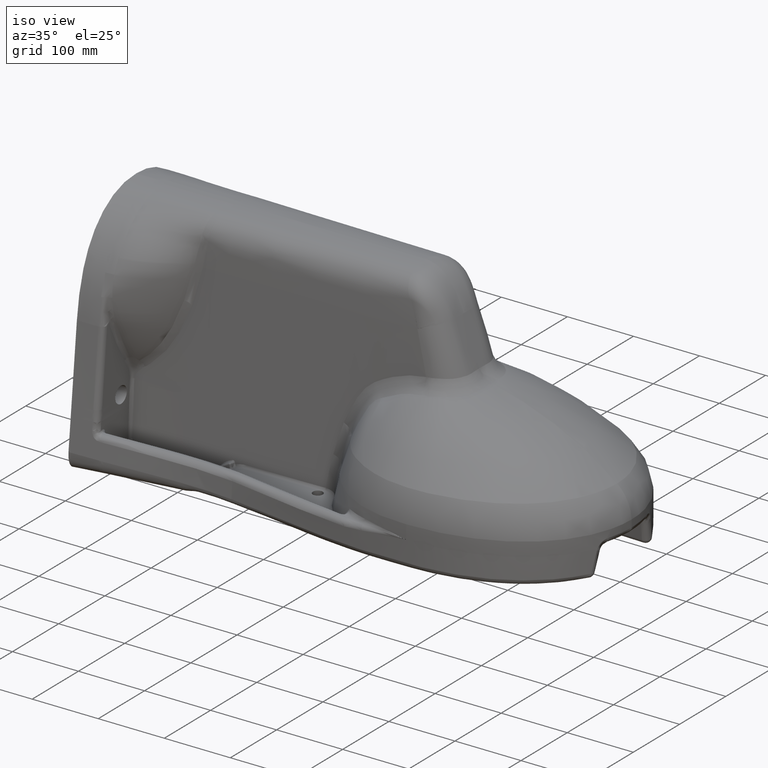
[diagram: clean part render]
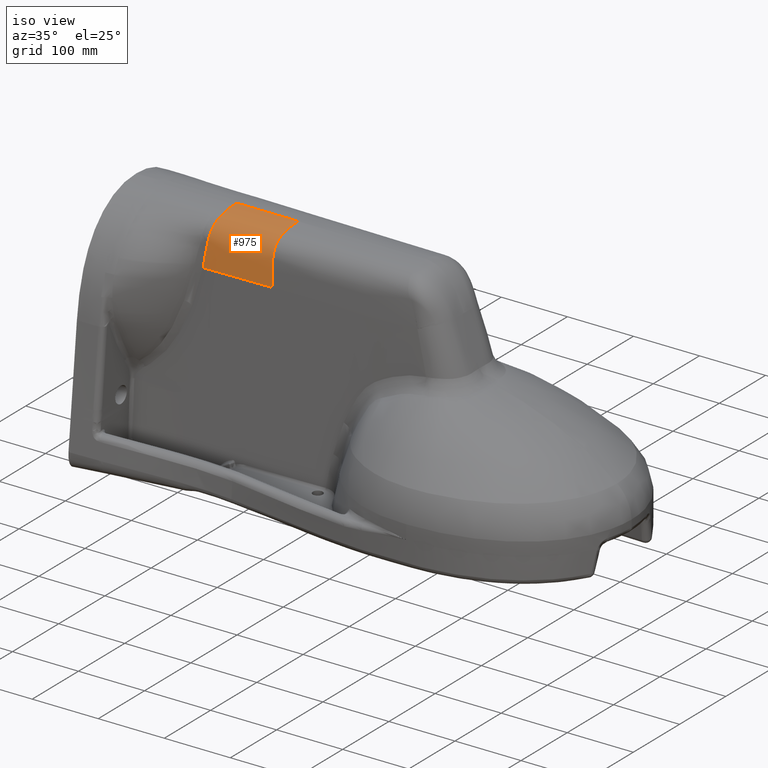
[diagram: same view with one face highlighted and labeled with its STEP entity id]
A machine part, iso view. The second image highlights one B-rep face of the part: STEP entity #975.
In plain terms, the highlighted face is a freeform B-spline surface patch.
Its self-contained STEP definition (entity closure, byte-faithful):
#975=ADVANCED_FACE('',(#1557),#1172,.F.);
#1172=B_SPLINE_SURFACE_WITH_KNOTS('',3,3,((#55493,#55494,#55495,#55496,
#55497,#55498,#55499,#55500,#55501,#55502,#55503,#55504,#55505,#55506,#55507,
#55508,#55509,#55510,#55511),(#55512,#55513,#55514,#55515,#55516,#55517,
#55518,#55519,#55520,#55521,#55522,#55523,#55524,#55525,#55526,#55527,#55528,
#55529,#55530),(#55531,#55532,#55533,#55534,#55535,#55536,#55537,#55538,
#55539,#55540,#55541,#55542,#55543,#55544,#55545,#55546,#55547,#55548,#55549),
(#55550,#55551,#55552,#55553,#55554,#55555,#55556,#55557,#55558,#55559,
#55560,#55561,#55562,#55563,#55564,#55565,#55566,#55567,#55568)),
 .UNSPECIFIED.,.F.,.F.,.F.,(4,4),(4,1,1,1,1,1,1,1,1,1,1,1,1,1,1,1,4),(0.,
1.),(0.,0.03125,0.0625,0.125,0.1875,0.25,0.28125,0.3125,0.34375,0.375,0.5,
0.625,0.65625,0.6875,0.75,0.875,1.),.UNSPECIFIED.);
#1557=FACE_OUTER_BOUND('',#1982,.T.);
#1982=EDGE_LOOP('',(#3766,#3767,#3768,#3769,#3770,#3771,#3772,#3773));
#3766=ORIENTED_EDGE('',*,*,#5533,.F.);
#3767=ORIENTED_EDGE('',*,*,#5330,.F.);
#3768=ORIENTED_EDGE('',*,*,#5637,.F.);
#3769=ORIENTED_EDGE('',*,*,#5638,.T.);
#3770=ORIENTED_EDGE('',*,*,#5639,.T.);
#3771=ORIENTED_EDGE('',*,*,#5640,.T.);
#3772=ORIENTED_EDGE('',*,*,#5632,.F.);
#3773=ORIENTED_EDGE('',*,*,#5636,.F.);
#4444=VERTEX_POINT('',#32484);
#4511=VERTEX_POINT('',#33856);
#4602=VERTEX_POINT('',#45791);
#4665=VERTEX_POINT('',#55287);
#4666=VERTEX_POINT('',#55292);
#4669=VERTEX_POINT('',#55464);
#4670=VERTEX_POINT('',#55475);
#4671=VERTEX_POINT('',#55485);
#5330=EDGE_CURVE('',#4511,#4444,#6187,.T.);
#5533=EDGE_CURVE('',#4444,#4602,#6343,.T.);
#5632=EDGE_CURVE('',#4665,#4666,#6417,.T.);
#5636=EDGE_CURVE('',#4602,#4665,#6421,.T.);
#5637=EDGE_CURVE('',#4669,#4511,#6422,.T.);
#5638=EDGE_CURVE('',#4669,#4670,#6423,.T.);
#5639=EDGE_CURVE('',#4670,#4671,#6424,.T.);
#5640=EDGE_CURVE('',#4671,#4666,#6425,.T.);
#6187=B_SPLINE_CURVE_WITH_KNOTS('',3,(#33857,#33858,#33859,#33860),
 .UNSPECIFIED.,.F.,.F.,(4,4),(0.,1.),.UNSPECIFIED.);
#6343=B_SPLINE_CURVE_WITH_KNOTS('',3,(#53964,#53965,#53966,#53967,#53968,
#53969,#53970,#53971,#53972,#53973,#53974,#53975,#53976,#53977,#53978,#53979,
#53980,#53981,#53982,#53983,#53984,#53985,#53986,#53987,#53988,#53989,#53990,
#53991,#53992,#53993,#53994,#53995,#53996,#53997,#53998,#53999,#54000,#54001,
#54002,#54003,#54004,#54005,#54006),.UNSPECIFIED.,.F.,.F.,(4,2,2,2,2,1,
2,2,2,2,2,1,1,1,2,2,2,2,2,2,1,2,2,4),(0.,0.124999999999967,0.187499999999951,
0.218749999999943,0.234374999999939,0.242187499999937,0.246093749999936,
0.249999999999935,0.312499999999923,0.37499999999991,0.437499999999897,
0.468749999999891,0.484374999999887,0.492187499999886,0.496093749999886,
0.499999999999885,0.624999999999905,0.687499999999915,0.718749999999921,
0.734374999999924,0.742187499999926,0.746093749999927,0.749999999999928,
1.),.UNSPECIFIED.);
#6417=B_SPLINE_CURVE_WITH_KNOTS('',3,(#55288,#55289,#55290,#55291),
 .UNSPECIFIED.,.F.,.F.,(4,4),(0.,1.),.UNSPECIFIED.);
#6421=B_SPLINE_CURVE_WITH_KNOTS('',3,(#55455,#55456,#55457,#55458),
 .UNSPECIFIED.,.F.,.F.,(4,4),(0.,1.),.UNSPECIFIED.);
#6422=B_SPLINE_CURVE_WITH_KNOTS('',3,(#55460,#55461,#55462,#55463),
 .UNSPECIFIED.,.F.,.F.,(4,4),(0.,1.),.UNSPECIFIED.);
#6423=B_SPLINE_CURVE_WITH_KNOTS('',3,(#55465,#55466,#55467,#55468,#55469,
#55470,#55471,#55472,#55473,#55474),.UNSPECIFIED.,.F.,.F.,(4,1,1,1,1,1,
1,4),(0.,0.0596270820719349,0.27725869333143,0.494890304590926,0.712521915850421,
0.821337721480169,0.930153527109917,1.),.UNSPECIFIED.);
#6424=B_SPLINE_CURVE_WITH_KNOTS('',3,(#55476,#55477,#55478,#55479,#55480,
#55481,#55482,#55483,#55484),.UNSPECIFIED.,.F.,.F.,(4,1,1,1,1,1,4),(0.,
0.0340644823233682,0.129184255405961,0.509663347736333,0.890142440066705,
0.985262213149298,1.),.UNSPECIFIED.);
#6425=B_SPLINE_CURVE_WITH_KNOTS('',3,(#55486,#55487,#55488,#55489,#55490,
#55491,#55492),.UNSPECIFIED.,.F.,.F.,(4,1,1,1,4),(0.,0.0779214710555977,
0.262337731278038,0.631170251722918,1.),.UNSPECIFIED.);
#32484=CARTESIAN_POINT('',(244.999999953417,153.525,338.620183975041));
#33856=CARTESIAN_POINT('',(152.339890200768,153.525,338.620174489876));
#33857=CARTESIAN_POINT('',(152.339890200768,153.525,338.620174489876));
#33858=CARTESIAN_POINT('',(183.226593451651,153.524999720602,338.620177651598));
#33859=CARTESIAN_POINT('',(214.113296702534,153.524999441204,338.620180813319));
#33860=CARTESIAN_POINT('',(244.999999953417,153.524999161806,338.620183975041));
#45791=CARTESIAN_POINT('',(244.999999920859,96.7338828946421,269.81781102533));
#53964=CARTESIAN_POINT('',(244.999999953417,153.525000838194,338.620183975041));
#53965=CARTESIAN_POINT('',(244.999999953417,150.555066539239,338.620183994532));
#53966=CARTESIAN_POINT('',(245.005072822118,146.81198865172,338.642402271709));
#53967=CARTESIAN_POINT('',(245.004097562759,140.078231982451,338.098260892646));
#53968=CARTESIAN_POINT('',(245.002912856426,137.648400339442,337.823490512872));
#53969=CARTESIAN_POINT('',(245.001393100726,133.744243926827,337.21170141794));
#53970=CARTESIAN_POINT('',(245.000915830665,132.399715963146,336.97432709536));
#53971=CARTESIAN_POINT('',(245.000392661867,130.32170181257,336.559771985978));
#53972=CARTESIAN_POINT('',(245.000250410165,129.618837868328,336.411834933469));
#53973=CARTESIAN_POINT('',(245.000102919884,128.549785052328,336.174227103319));
#53974=CARTESIAN_POINT('',(245.000045630921,128.011570406828,336.051497252472));
#53975=CARTESIAN_POINT('',(245.000016189485,127.467932368493,335.92267378638));
#53976=CARTESIAN_POINT('',(245.000003090335,127.104314580035,335.835414371854));
#53977=CARTESIAN_POINT('',(244.999999842397,126.87625719479,335.779865278674));
#53978=CARTESIAN_POINT('',(245.000001729738,124.541432355581,335.205478363818));
#53979=CARTESIAN_POINT('',(244.990421895962,122.357748194748,334.601235455895));
#53980=CARTESIAN_POINT('',(244.995745349144,118.066502123841,333.190771775564));
#53981=CARTESIAN_POINT('',(245.019129570328,115.967387991868,332.354481249152));
#53982=CARTESIAN_POINT('',(245.045185568255,112.034894231645,330.187880798629));
#53983=CARTESIAN_POINT('',(245.04987155833,110.200045049043,328.880411382755));
#53984=CARTESIAN_POINT('',(245.042403314943,107.700670124205,326.645354720348));
#53985=CARTESIAN_POINT('',(245.035067958606,106.51415885281,325.45943053944));
#53986=CARTESIAN_POINT('',(245.019831977022,105.252534663014,323.969984115888));
#53987=CARTESIAN_POINT('',(245.01049722041,104.653892913185,323.200521303954));
#53988=CARTESIAN_POINT('',(245.006123670114,104.404387678382,322.865635255411));
#53989=CARTESIAN_POINT('',(245.003124531399,104.239636734635,322.641261502203));
#53990=CARTESIAN_POINT('',(245.001140820233,104.135481474979,322.496858686316));
#53991=CARTESIAN_POINT('',(244.9634922153,102.214621731045,319.802895835011));
#53992=CARTESIAN_POINT('',(244.962495387161,100.363692689835,316.332541307325));
#53993=CARTESIAN_POINT('',(244.97711735905,98.8150541809607,309.78314342424));
#53994=CARTESIAN_POINT('',(244.983750446308,98.5785147834789,307.381377175214));
#53995=CARTESIAN_POINT('',(244.992267696212,98.3845375868186,303.537074847509));
#53996=CARTESIAN_POINT('',(244.994891880346,98.3294975354139,302.214820052784));
#53997=CARTESIAN_POINT('',(244.997795636977,98.2300949126414,300.172002154443));
#53998=CARTESIAN_POINT('',(244.998589071794,98.1956725449304,299.48107693063));
#53999=CARTESIAN_POINT('',(244.999416620773,98.1427371966754,298.429696851299));
#54000=CARTESIAN_POINT('',(244.999739664655,98.1159459705531,297.900258669985));
#54001=CARTESIAN_POINT('',(244.999906963971,98.0888053586301,297.365195014735));
#54002=CARTESIAN_POINT('',(244.99998165198,98.0706503538138,297.007235389011));
#54003=CARTESIAN_POINT('',(245.000000452441,98.059731938711,296.7918974659));
#54004=CARTESIAN_POINT('',(244.999968015875,97.5839158930749,287.399547190164));
#54005=CARTESIAN_POINT('',(244.999999953417,97.1560189002258,278.453184993812));
#54006=CARTESIAN_POINT('',(244.999999953417,96.7338830255792,269.817811018929));
#55287=CARTESIAN_POINT('',(155.000000008796,95.3330495003624,269.817681650746));
#55288=CARTESIAN_POINT('',(154.999999942523,95.3330537452772,269.817775251965));
#55289=CARTESIAN_POINT('',(150.593185874458,95.2645255433232,269.817768991901));
#55290=CARTESIAN_POINT('',(146.186371806394,95.1959973413694,269.817762731838));
#55291=CARTESIAN_POINT('',(141.77955773833,95.1274691394154,269.817756471775));
#55292=CARTESIAN_POINT('',(141.779538446476,95.1273699208943,269.817659525516));
#55455=CARTESIAN_POINT('',(244.999999939309,96.7338816288474,269.817785831296));
#55456=CARTESIAN_POINT('',(214.999999983516,96.2669362382011,269.817720945441));
#55457=CARTESIAN_POINT('',(185.000000027722,95.7999908475548,269.817656059585));
#55458=CARTESIAN_POINT('',(155.000000071928,95.3330454569084,269.81759117373));
#55460=CARTESIAN_POINT('',(152.339890200769,148.524998895113,338.620214317763));
#55461=CARTESIAN_POINT('',(152.339890200768,150.191665929864,338.620187765839));
#55462=CARTESIAN_POINT('',(152.339890200768,151.858332964932,338.620174489876));
#55463=CARTESIAN_POINT('',(152.339890200768,153.525,338.620174489876));
#55464=CARTESIAN_POINT('',(152.339804268697,148.525000870644,338.619500961423));
#55465=CARTESIAN_POINT('',(152.339718336636,148.525002846179,338.618787605083));
#55466=CARTESIAN_POINT('',(152.339508710981,147.896046771092,338.617071060103));
#55467=CARTESIAN_POINT('',(152.33697495084,144.971661121127,338.596306082881));
#55468=CARTESIAN_POINT('',(152.301470041961,139.756077002531,338.305257719151));
#55469=CARTESIAN_POINT('',(152.19552175135,132.920473186636,337.439709138216));
#55470=CARTESIAN_POINT('',(152.058356151956,127.289089169967,336.322613535601));
#55471=CARTESIAN_POINT('',(151.919629642561,122.840659278917,335.195647687655));
#55472=CARTESIAN_POINT('',(151.816152967355,119.928011791632,334.356108669045));
#55473=CARTESIAN_POINT('',(151.746263771834,118.131046166193,333.789604081921));
#55474=CARTESIAN_POINT('',(151.71678050678,117.434777798165,333.550852911803));
#55475=CARTESIAN_POINT('',(151.71667452005,117.435059080985,333.550045696931));
#55476=CARTESIAN_POINT('',(151.716780506774,117.434777798165,333.550852911804));
#55477=CARTESIAN_POINT('',(151.700330955085,117.046309882935,333.417646847055));
#55478=CARTESIAN_POINT('',(151.635397901158,115.580471753369,332.892083265738));
#55479=CARTESIAN_POINT('',(151.328170994896,109.949215156213,330.410482931006));
#55480=CARTESIAN_POINT('',(150.472042928337,101.931577551015,323.52697537183));
#55481=CARTESIAN_POINT('',(149.196556953806,97.7292949115974,313.875383101923));
#55482=CARTESIAN_POINT('',(148.36524919234,97.0450944756398,308.048350620046));
#55483=CARTESIAN_POINT('',(148.175108047079,96.951522436665,306.739746438227));
#55484=CARTESIAN_POINT('',(148.149531459972,96.9398569647218,306.564148272694));
#55485=CARTESIAN_POINT('',(148.149512691936,96.9414918047378,306.564042399388));
#55486=CARTESIAN_POINT('',(148.149531459967,96.9398569647218,306.564148272695));
#55487=CARTESIAN_POINT('',(148.010033115099,96.876231821094,305.60641089549));
#55488=CARTESIAN_POINT('',(147.533527699422,96.7509150915387,302.377575028915));
#55489=CARTESIAN_POINT('',(146.338406272685,96.3409901578888,294.62342483729));
#55490=CARTESIAN_POINT('',(144.428630266885,95.7926888227062,283.317753837475));
#55491=CARTESIAN_POINT('',(142.7003706729,95.3490620602093,274.310041719155));
#55492=CARTESIAN_POINT('',(141.77953991793,95.12727570331,269.817663875376));
#55493=CARTESIAN_POINT('',(152.339890200768,153.525,338.620174489876));
#55494=CARTESIAN_POINT('',(152.33989020077,152.377206082305,338.620174489884));
#55495=CARTESIAN_POINT('',(152.339647261146,150.081659190058,338.61820231784));
#55496=CARTESIAN_POINT('',(152.340503896803,145.490054637876,338.625234306717));
#55497=CARTESIAN_POINT('',(152.30147004195,139.756077002531,338.305257719151));
#55498=CARTESIAN_POINT('',(152.195521751339,132.920473186636,337.439709138216));
#55499=CARTESIAN_POINT('',(152.058356151945,127.289089169967,336.322613535601));
#55500=CARTESIAN_POINT('',(151.91962964255,122.840659278917,335.195647687655));
#55501=CARTESIAN_POINT('',(151.802126099874,119.533185419315,334.242304253446));
#55502=CARTESIAN_POINT('',(151.672202250876,116.25507001594,333.189367405667));
#55503=CARTESIAN_POINT('',(151.328170994891,109.949215156213,330.410482931006));
#55504=CARTESIAN_POINT('',(150.472042928332,101.931577551015,323.52697537183));
#55505=CARTESIAN_POINT('',(149.196556953801,97.7292949115973,313.875383101923));
#55506=CARTESIAN_POINT('',(148.228971048068,96.9329319649053,307.093112127128));
#55507=CARTESIAN_POINT('',(147.560579500909,96.7601938206129,302.553091697756));
#55508=CARTESIAN_POINT('',(146.338406272685,96.3409901578888,294.62342483729));
#55509=CARTESIAN_POINT('',(144.42862452527,95.7926871742747,283.317719847727));
#55510=CARTESIAN_POINT('',(142.700357683143,95.3490587258708,274.309974016385));
#55511=CARTESIAN_POINT('',(141.779519154703,95.1272707023929,269.817562579656));
#55512=CARTESIAN_POINT('',(247.695364372902,153.525000862576,338.620184250952));
#55513=CARTESIAN_POINT('',(247.695364358948,152.384341761618,338.620184258657));
#55514=CARTESIAN_POINT('',(247.699937773642,150.103099441915,338.605646127019));
#55515=CARTESIAN_POINT('',(247.72873208201,145.542397689617,338.53151355653));
#55516=CARTESIAN_POINT('',(247.7727947758,139.852804214148,338.122443385736));
#55517=CARTESIAN_POINT('',(247.84082004235,133.079136603778,337.158062877524));
#55518=CARTESIAN_POINT('',(247.909155304576,127.507118299211,335.966616345617));
#55519=CARTESIAN_POINT('',(247.970293923071,123.110706353452,334.785444233924));
#55520=CARTESIAN_POINT('',(248.021056782522,119.844381336848,333.791180554156));
#55521=CARTESIAN_POINT('',(248.115571914627,116.65405117499,332.609940056212));
#55522=CARTESIAN_POINT('',(248.328854928177,110.572765377205,329.583094065509));
#55523=CARTESIAN_POINT('',(248.634628493604,102.981859883378,322.519380017538));
#55524=CARTESIAN_POINT('',(248.880666174763,99.1884525067122,312.965398512559));
#55525=CARTESIAN_POINT('',(248.990769738328,98.5753651664771,306.321360493748));
#55526=CARTESIAN_POINT('',(249.050798435225,98.3867412960781,301.882542293437));
#55527=CARTESIAN_POINT('',(249.120149406119,97.9874581761159,294.123853435793));
#55528=CARTESIAN_POINT('',(249.11201893929,97.4474648065779,283.055959938582));
#55529=CARTESIAN_POINT('',(248.970717760507,97.0116218632178,274.225774182614));
#55530=CARTESIAN_POINT('',(248.860821083698,96.7939748878948,269.817794174256));
#55531=CARTESIAN_POINT('',(343.050838545037,153.525001725152,338.620194012029));
#55532=CARTESIAN_POINT('',(343.050838517127,152.39147744093,338.620194027431));
#55533=CARTESIAN_POINT('',(343.060228286137,150.124539693772,338.593089936199));
#55534=CARTESIAN_POINT('',(343.116960267218,145.594740741358,338.437792806344));
#55535=CARTESIAN_POINT('',(343.244119509651,139.949531425765,337.93962905232));
#55536=CARTESIAN_POINT('',(343.48611833336,133.23780002092,336.876416616831));
#55537=CARTESIAN_POINT('',(343.759954457207,127.725147428454,335.610619155632));
#55538=CARTESIAN_POINT('',(344.020958203592,123.380753427987,334.375240780194));
#55539=CARTESIAN_POINT('',(344.23998746517,120.155577254381,333.340056854866));
#55540=CARTESIAN_POINT('',(344.558941578378,117.053032334039,332.030512706757));
#55541=CARTESIAN_POINT('',(345.329538861464,111.196315598198,328.755705200013));
#55542=CARTESIAN_POINT('',(346.797214058876,104.032142215741,321.511784663246));
#55543=CARTESIAN_POINT('',(348.564775395725,100.647610101827,312.055413923195));
#55544=CARTESIAN_POINT('',(349.752568428589,100.217798368049,305.549608860368));
#55545=CARTESIAN_POINT('',(350.541017369541,100.013288771543,301.211992889117));
#55546=CARTESIAN_POINT('',(351.901892539553,99.6339261943433,293.624282034297));
#55547=CARTESIAN_POINT('',(353.795413353311,99.1022424388811,282.794200029438));
#55548=CARTESIAN_POINT('',(355.241077837872,98.6741850005646,274.141574348844));
#55549=CARTESIAN_POINT('',(355.942123012693,98.4606790733967,269.818025768857));
#55550=CARTESIAN_POINT('',(438.406312717171,153.525002587728,338.620203773105));
#55551=CARTESIAN_POINT('',(438.406312675305,152.398613120243,338.620203796204));
#55552=CARTESIAN_POINT('',(438.420518798633,150.145979945628,338.580533745378));
#55553=CARTESIAN_POINT('',(438.505188452426,145.647083793099,338.344072056157));
#55554=CARTESIAN_POINT('',(438.715444243502,140.046258637383,337.756814718905));
#55555=CARTESIAN_POINT('',(439.131416624371,133.396463438061,336.594770356138));
#55556=CARTESIAN_POINT('',(439.610753609839,127.943176557698,335.254621965647));
#55557=CARTESIAN_POINT('',(440.071622484113,123.650800502522,333.965037326464));
#55558=CARTESIAN_POINT('',(440.458918147818,120.466773171914,332.888933155576));
#55559=CARTESIAN_POINT('',(441.002311242128,117.452013493089,331.451085357302));
#55560=CARTESIAN_POINT('',(442.330222794751,111.81986581919,327.928316334517));
#55561=CARTESIAN_POINT('',(444.959799624148,105.082424548105,320.504189308954));
#55562=CARTESIAN_POINT('',(448.248884616687,102.106767696942,311.145429333831));
#55563=CARTESIAN_POINT('',(450.51436711885,101.860231569621,304.777857226988));
#55564=CARTESIAN_POINT('',(452.031236303856,101.639836247009,300.541443484798));
#55565=CARTESIAN_POINT('',(454.683635672988,101.28039421257,293.124710632802));
#55566=CARTESIAN_POINT('',(458.478807767331,100.757020071184,282.532440120293));
#55567=CARTESIAN_POINT('',(461.511437915236,100.336748137912,274.057374515074));
#55568=CARTESIAN_POINT('',(463.023424941687,100.127383258899,269.818257363457));